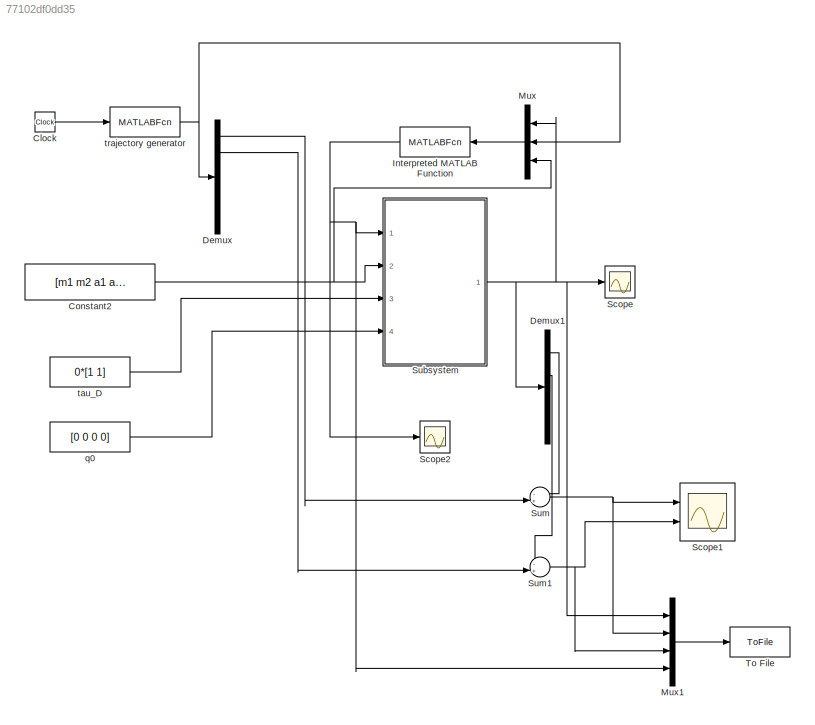
MODEL slx_77102df0dd35
KIND model
BLOCK [Clock] Clock
BLOCK [Constant] Constant2
  Value = [m1 m2 a1 a2 b1 b2 g]
BLOCK [Demux] Demux
  DisplayOption = bar
  Outputs = 6
  Ports = [1, 6]
BLOCK [Demux] Demux1
  DisplayOption = bar
  Ports = [1, 4]
BLOCK [MATLABFcn] Interpreted MATLAB Function
  MATLABFcn = ct_gravit_planar_robot_simulink
  Ports = [1, 1]
BLOCK [Mux] Mux
  DisplayOption = bar
  Inputs = 3
  Ports = [3, 1]
BLOCK [Mux] Mux1
  DisplayOption = bar
  Ports = [4, 1]
BLOCK [Scope] Scope
  Floating = off
  LimitDataPoints = off
  NumInputPorts = 1
  Ports = [1]
  ShowLegends = off
  YMax = 0.45
  YMin = -0.45
BLOCK [Scope] Scope1
  Floating = off
  LimitDataPoints = off
  NumInputPorts = 2
  Ports = [2]
  SaveName = ScopeData1
  ShowLegends = off
  TimeRange = 10
  YMax = 9000~0.1
  YMin = 1000~-0.06
  ZoomMode = yonly
BLOCK [Scope] Scope2
  Floating = off
  LimitDataPoints = off
  NumInputPorts = 1
  Ports = [1]
  SaveName = ScopeData2
  ShowLegends = off
  YMax = 35
  YMin = 7.5
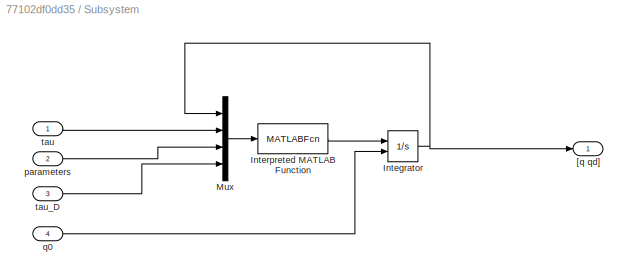
BLOCK [SubSystem] Subsystem
  Ports = [4, 1]
  RequestExecContextInheritance = off
BLOCK [Integrator] Subsystem/Integrator
  InitialConditionSource = external
  Ports = [2, 1]
BLOCK [MATLABFcn] Subsystem/Interpreted MATLAB Function
  MATLABFcn = planar_robot_simulink
  OutputDimensions = 4
  Ports = [1, 1]
BLOCK [Mux] Subsystem/Mux
  DisplayOption = bar
  Ports = [4, 1]
BLOCK [Outport] Subsystem/[q qd]
  IconDisplay = Port number
BLOCK [Inport] Subsystem/parameters
  IconDisplay = Port number
  Port = 2
BLOCK [Inport] Subsystem/q0
  IconDisplay = Port number
  Port = 4
BLOCK [Inport] Subsystem/tau
  IconDisplay = Port number
BLOCK [Inport] Subsystem/tau_D
  IconDisplay = Port number
  Port = 3
BLOCK [Sum] Sum
  IconShape = round
  InputSameDT = off
  Inputs = -+|
  OutDataTypeStr = Inherit: Inherit via internal rule
  Ports = [2, 1]
  SaturateOnIntegerOverflow = off
BLOCK [Sum] Sum1
  IconShape = round
  InputSameDT = off
  Inputs = -+|
  OutDataTypeStr = Inherit: Inherit via internal rule
  Ports = [2, 1]
  SaturateOnIntegerOverflow = off
BLOCK [ToFile] To File
  Filename = pd_grav2.mat
  MatrixName = pd_grav
  Ports = [1]
BLOCK [Constant] q0
  Value = [0 0 0 0]
BLOCK [Constant] tau_D
  Value = 0*[1 1]
BLOCK [MATLABFcn] trajectory generator
  MATLABFcn = trajectory_planar_robot_simulink
  Ports = [1, 1]
LINE Clock:1 -> trajectory generator:1
NET Constant2:1 -> Mux:3, Subsystem:2
LINE Demux1:1 -> Sum:1
LINE Demux1:2 -> Sum1:1
LINE Demux:1 -> Sum:2
LINE Demux:2 -> Sum1:2
NET Interpreted MATLAB Function:1 -> Mux1:4, Scope2:1, Subsystem:1
LINE Mux1:1 -> To File:1
LINE Mux:1 -> Interpreted MATLAB Function:1
NET Subsystem/Integrator:1 -> Subsystem/Mux:1, Subsystem/[q qd]:1
LINE Subsystem/Interpreted MATLAB Function:1 -> Subsystem/Integrator:1
LINE Subsystem/Mux:1 -> Subsystem/Interpreted MATLAB Function:1
LINE Subsystem/parameters:1 -> Subsystem/Mux:3
LINE Subsystem/q0:1 -> Subsystem/Integrator:2
LINE Subsystem/tau:1 -> Subsystem/Mux:2
LINE Subsystem/tau_D:1 -> Subsystem/Mux:4
NET Subsystem:1 -> Demux1:1, Mux1:1, Mux:1, Scope:1
NET Sum1:1 -> Mux1:3, Scope1:2
NET Sum:1 -> Mux1:2, Scope1:1
LINE q0:1 -> Subsystem:4
LINE tau_D:1 -> Subsystem:3
NET trajectory generator:1 -> Demux:1, Mux:2
note: NET lines group one-source signal fan-out (src -> all destinations, sorted); 1:1 wires keep LINE
